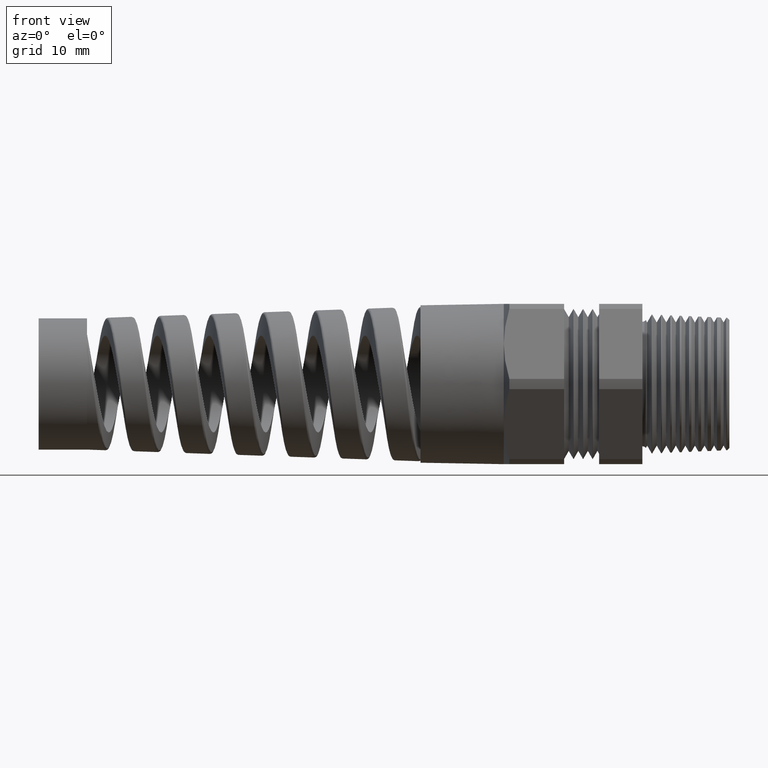
[diagram: clean part render]
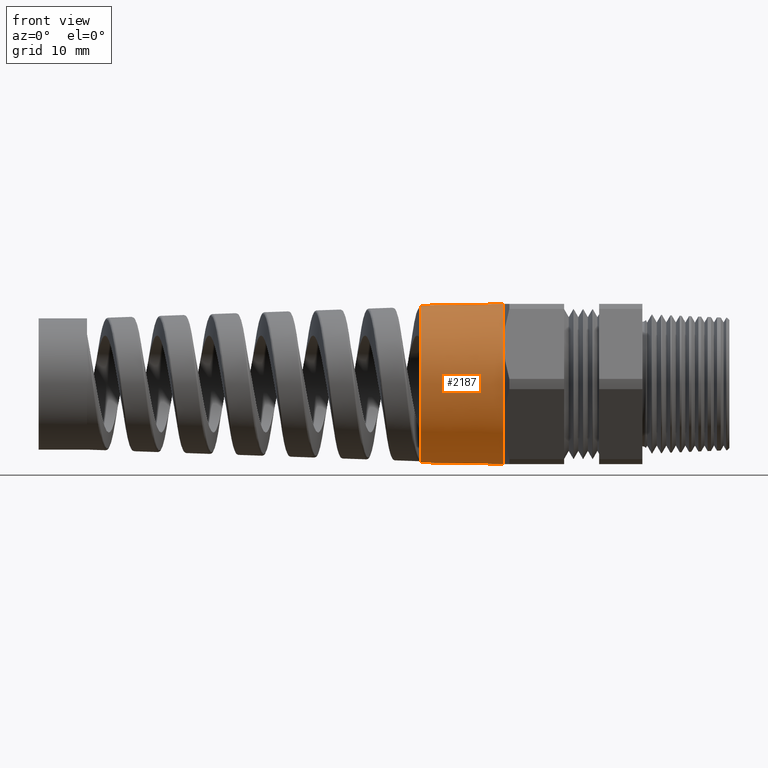
[diagram: same view with one face highlighted and labeled with its STEP entity id]
A machine part, front view. The second image highlights one B-rep face of the part: STEP entity #2187.
In plain terms, the highlighted conical surface has half-angle 1 deg.
Its self-contained STEP definition (entity closure, byte-faithful):
#968 = DIRECTION ( 'NONE',  ( 0.0000000000000000000, 0.0000000000000000000, 1.000000000000000000 ) ) ;
#1939 = VERTEX_POINT ( 'NONE', #9946 ) ;
#1942 = EDGE_CURVE ( 'NONE', #1961, #1939, #9941, .T. ) ;
#1943 = ORIENTED_EDGE ( 'NONE', *, *, #1942, .T. ) ;
#1961 = VERTEX_POINT ( 'NONE', #9928 ) ;
#1973 = ORIENTED_EDGE ( 'NONE', *, *, #1989, .T. ) ;
#1975 = VERTEX_POINT ( 'NONE', #9992 ) ;
#1989 = EDGE_CURVE ( 'NONE', #1975, #1961, #9984, .T. ) ;
#2127 = EDGE_CURVE ( 'NONE', #2198, #1975, #10019, .T. ) ;
#2131 = ORIENTED_EDGE ( 'NONE', *, *, #2127, .T. ) ;
#2178 = VERTEX_POINT ( 'NONE', #10227 ) ;
#2179 = ORIENTED_EDGE ( 'NONE', *, *, #2181, .F. ) ;
#2181 = EDGE_CURVE ( 'NONE', #2196, #2178, #10246, .T. ) ;
#2184 = EDGE_CURVE ( 'NONE', #1939, #2178, #10238, .T. ) ;
#2185 = EDGE_CURVE ( 'NONE', #2198, #2196, #10300, .T. ) ;
#2187 = ADVANCED_FACE ( 'NONE', ( #10293 ), #10292, .T. ) ;
#2194 = ORIENTED_EDGE ( 'NONE', *, *, #2185, .F. ) ;
#2195 = ORIENTED_EDGE ( 'NONE', *, *, #2184, .T. ) ;
#2196 = VERTEX_POINT ( 'NONE', #10264 ) ;
#2197 = EDGE_LOOP ( 'NONE', ( #2194, #2131, #1973, #1943, #2195, #2179 ) ) ;
#2198 = VERTEX_POINT ( 'NONE', #10263 ) ;
#9928 = CARTESIAN_POINT ( 'NONE',  ( -0.8125000000000001100, -0.4070319397786860100, -0.2350000000000000100 ) ) ;
#9937 = DIRECTION ( 'NONE',  ( 0.0000000000000000000, 0.0000000000000000000, 1.000000000000000000 ) ) ;
#9938 = DIRECTION ( 'NONE',  ( -1.000000000000000000, 0.0000000000000000000, 0.0000000000000000000 ) ) ;
#9939 = CARTESIAN_POINT ( 'NONE',  ( -0.8125000000000000000, 0.0000000000000000000, 0.0000000000000000000 ) ) ;
#9940 = AXIS2_PLACEMENT_3D ( 'NONE', #9939, #9938, #9937 ) ;
#9941 = CIRCLE ( 'NONE', #9940, 0.4699999999999997000 ) ;
#9946 = CARTESIAN_POINT ( 'NONE',  ( -0.8125000000000000000, -0.4070319397786860100, 0.2349999999999999600 ) ) ;
#9980 = DIRECTION ( 'NONE',  ( 0.0000000000000000000, 0.0000000000000000000, 1.000000000000000000 ) ) ;
#9981 = DIRECTION ( 'NONE',  ( -1.000000000000000000, 0.0000000000000000000, 0.0000000000000000000 ) ) ;
#9982 = CARTESIAN_POINT ( 'NONE',  ( -0.8125000000000000000, 0.0000000000000000000, 0.0000000000000000000 ) ) ;
#9983 = AXIS2_PLACEMENT_3D ( 'NONE', #9982, #9981, #9980 ) ;
#9984 = CIRCLE ( 'NONE', #9983, 0.4699999999999997000 ) ;
#9992 = CARTESIAN_POINT ( 'NONE',  ( -0.8125000000000000000, 0.0000000000000000000, -0.4699999999999999200 ) ) ;
#10012 = DIRECTION ( 'NONE',  ( 0.9998476951563912700, -2.137303368083796300E-018, -0.01745240643728355000 ) ) ;
#10013 = VECTOR ( 'NONE', #10012, 39.37007874015748100 ) ;
#10014 = CARTESIAN_POINT ( 'NONE',  ( -0.8125000000000000000, -5.755839955992557200E-017, -0.4699999999999997500 ) ) ;
#10019 = LINE ( 'NONE', #10014, #10013 ) ;
#10227 = CARTESIAN_POINT ( 'NONE',  ( -0.8125000000000001100, 0.0000000000000000000, 0.4699999999999997000 ) ) ;
#10236 = DIRECTION ( 'NONE',  ( -1.000000000000000000, 0.0000000000000000000, 0.0000000000000000000 ) ) ;
#10237 = AXIS2_PLACEMENT_3D ( 'NONE', #10241, #10236, #968 ) ;
#10238 = CIRCLE ( 'NONE', #10237, 0.4699999999999997000 ) ;
#10241 = CARTESIAN_POINT ( 'NONE',  ( -0.8125000000000000000, 0.0000000000000000000, 0.0000000000000000000 ) ) ;
#10243 = DIRECTION ( 'NONE',  ( 0.9998476951563912700, 0.0000000000000000000, 0.01745240643728355000 ) ) ;
#10244 = VECTOR ( 'NONE', #10243, 39.37007874015748100 ) ;
#10245 = CARTESIAN_POINT ( 'NONE',  ( -0.8125000000000000000, 0.0000000000000000000, 0.4699999999999997500 ) ) ;
#10246 = LINE ( 'NONE', #10245, #10244 ) ;
#10263 = CARTESIAN_POINT ( 'NONE',  ( -1.301020000000000100, -5.703626231520601100E-017, -0.4614728516812668400 ) ) ;
#10264 = CARTESIAN_POINT ( 'NONE',  ( -1.301020000000000100, 0.0000000000000000000, 0.4614728516812668400 ) ) ;
#10287 = DIRECTION ( 'NONE',  ( 0.0000000000000000000, 0.0000000000000000000, 1.000000000000000000 ) ) ;
#10288 = DIRECTION ( 'NONE',  ( 1.000000000000000000, 0.0000000000000000000, 0.0000000000000000000 ) ) ;
#10289 = CARTESIAN_POINT ( 'NONE',  ( -0.8125000000000000000, 0.0000000000000000000, 0.0000000000000000000 ) ) ;
#10290 = AXIS2_PLACEMENT_3D ( 'NONE', #10289, #10288, #10287 ) ;
#10292 = CONICAL_SURFACE ( 'NONE', #10290, 0.4699999999999997500, 0.01745329251994333400 ) ;
#10293 = FACE_OUTER_BOUND ( 'NONE', #2197, .T. ) ;
#10294 = DIRECTION ( 'NONE',  ( 0.0000000000000000000, 0.0000000000000000000, 1.000000000000000000 ) ) ;
#10295 = DIRECTION ( 'NONE',  ( -1.000000000000000000, 0.0000000000000000000, 0.0000000000000000000 ) ) ;
#10296 = CARTESIAN_POINT ( 'NONE',  ( -1.301020000000000100, 0.0000000000000000000, 0.0000000000000000000 ) ) ;
#10297 = AXIS2_PLACEMENT_3D ( 'NONE', #10296, #10295, #10294 ) ;
#10300 = CIRCLE ( 'NONE', #10297, 0.4614728516812668400 ) ;